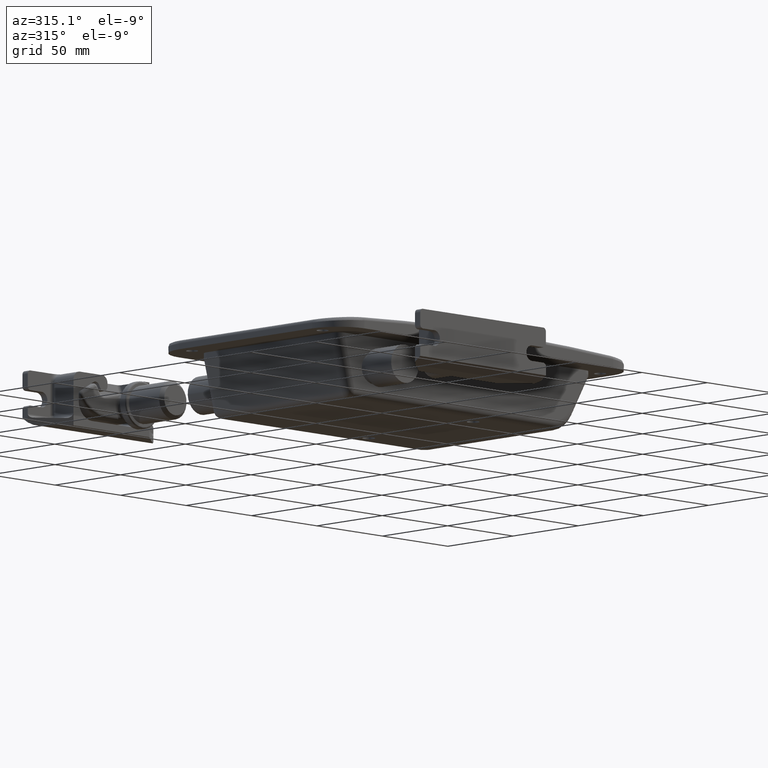
[diagram: clean part render]
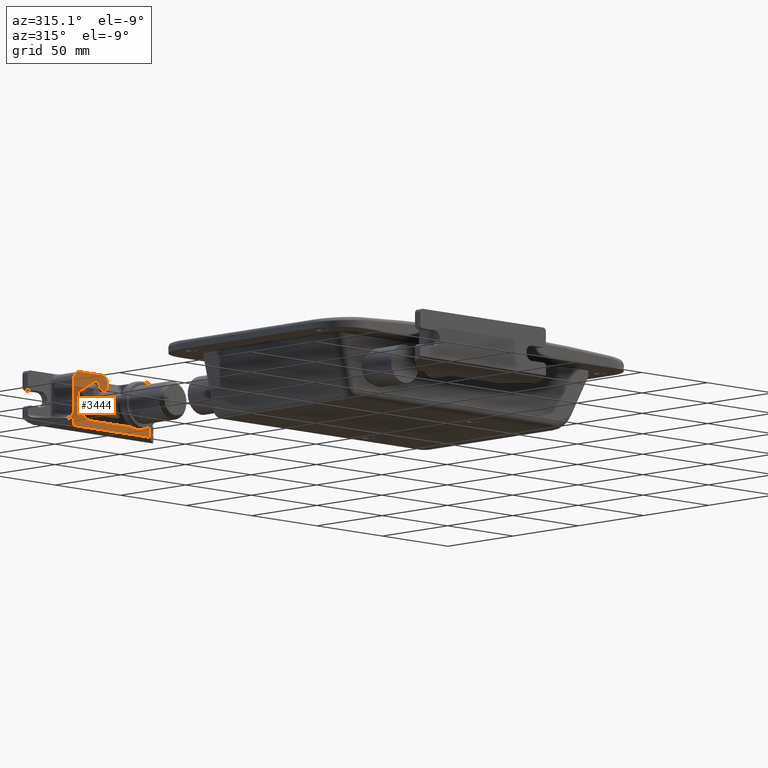
[diagram: same view with one face highlighted and labeled with its STEP entity id]
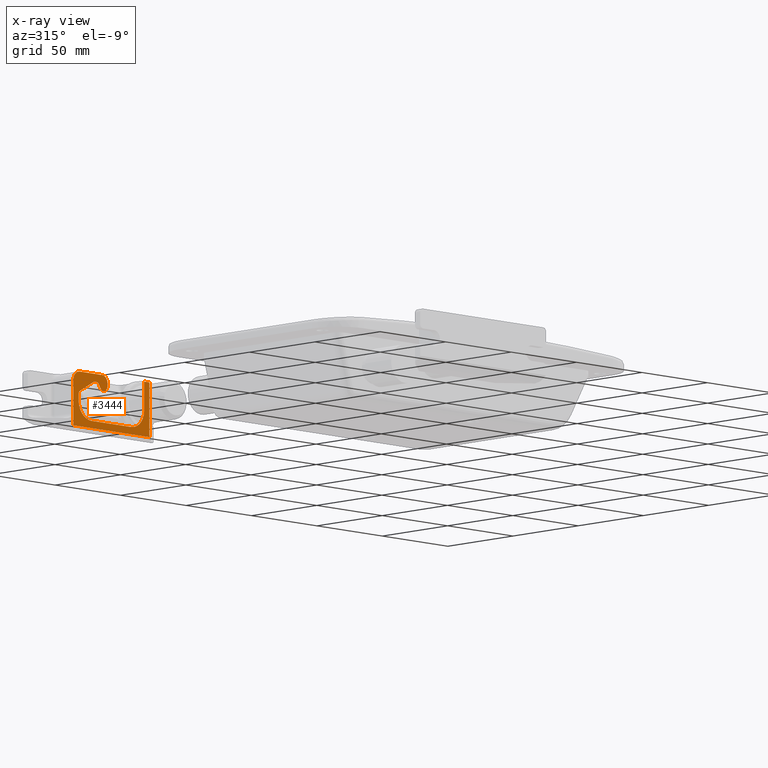
[diagram: x-ray of the same camera — body ghosted, the highlighted face saturated]
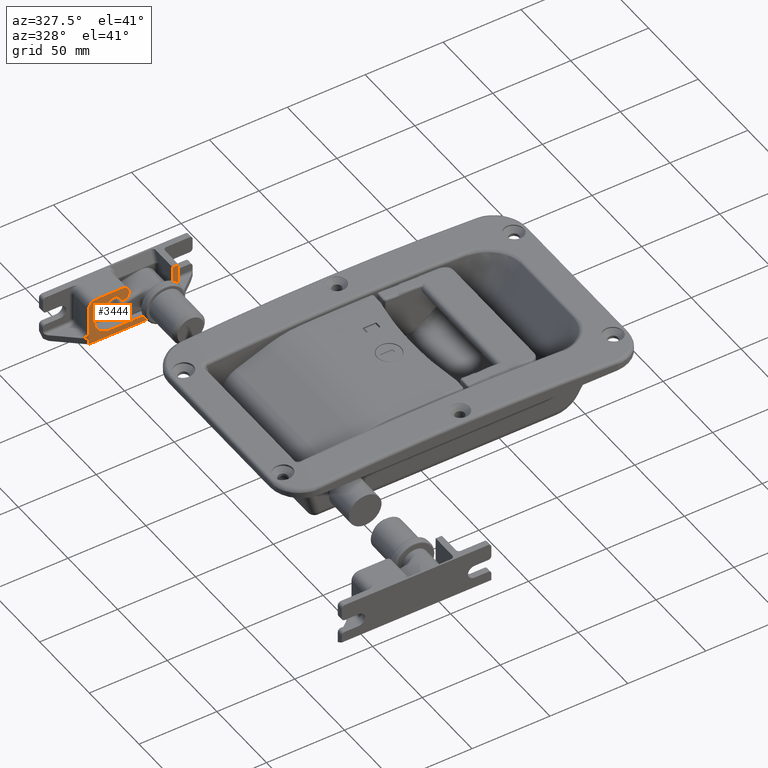
[diagram: same view with one face highlighted and labeled with its STEP entity id]
A machine part, auxiliary view. The second image highlights one B-rep face of the part: STEP entity #3444.
The next image is the same camera in x-ray: the body ghosted, the highlighted face saturated — about 0% of this face is hidden behind the body in this view.
A second angle (auxiliary view) of the same face is appended — the face is thin or edge-on in the first view.
In plain terms, the highlighted planar face has unit normal (0, -1, 0).
Its self-contained STEP definition (entity closure, byte-faithful):
#1011 = VERTEX_POINT ( 'NONE', #8761 ) ;
#1012 = VERTEX_POINT ( 'NONE', #8762 ) ;
#1015 = VERTEX_POINT ( 'NONE', #8765 ) ;
#1016 = VERTEX_POINT ( 'NONE', #8766 ) ;
#1042 = VERTEX_POINT ( 'NONE', #8792 ) ;
#1045 = VERTEX_POINT ( 'NONE', #8795 ) ;
#1058 = VERTEX_POINT ( 'NONE', #8808 ) ;
#1059 = VERTEX_POINT ( 'NONE', #8809 ) ;
#1064 = VERTEX_POINT ( 'NONE', #8814 ) ;
#1065 = VERTEX_POINT ( 'NONE', #8815 ) ;
#1089 = VERTEX_POINT ( 'NONE', #8839 ) ;
#1091 = VERTEX_POINT ( 'NONE', #8841 ) ;
#1093 = VERTEX_POINT ( 'NONE', #8843 ) ;
#1098 = VERTEX_POINT ( 'NONE', #8848 ) ;
#1100 = VERTEX_POINT ( 'NONE', #8850 ) ;
#1102 = VERTEX_POINT ( 'NONE', #8852 ) ;
#1104 = VERTEX_POINT ( 'NONE', #8854 ) ;
#1106 = VERTEX_POINT ( 'NONE', #8856 ) ;
#1108 = VERTEX_POINT ( 'NONE', #8858 ) ;
#1109 = VERTEX_POINT ( 'NONE', #8859 ) ;
#1111 = VERTEX_POINT ( 'NONE', #8861 ) ;
#1113 = VERTEX_POINT ( 'NONE', #8863 ) ;
#3444 = ADVANCED_FACE ( 'NONE', ( #16159 ), #18257, .T. ) ;
#4406 = EDGE_CURVE ( 'NONE', #1011, #1012, #19639, .T. ) ;
#4412 = EDGE_CURVE ( 'NONE', #1016, #1015, #19648, .T. ) ;
#4442 = EDGE_CURVE ( 'NONE', #1042, #1045, #19695, .T. ) ;
#4462 = EDGE_CURVE ( 'NONE', #1059, #1058, #19732, .T. ) ;
#4468 = EDGE_CURVE ( 'NONE', #1065, #1064, #19740, .T. ) ;
#4510 = EDGE_CURVE ( 'NONE', #1064, #1089, #19806, .T. ) ;
#4513 = EDGE_CURVE ( 'NONE', #1091, #1059, #19811, .T. ) ;
#4516 = EDGE_CURVE ( 'NONE', #1093, #1091, #19815, .T. ) ;
#4518 = EDGE_CURVE ( 'NONE', #1015, #1093, #19818, .T. ) ;
#4526 = EDGE_CURVE ( 'NONE', #1098, #1065, #19829, .T. ) ;
#4529 = EDGE_CURVE ( 'NONE', #1089, #1100, #19835, .T. ) ;
#4532 = EDGE_CURVE ( 'NONE', #1100, #1102, #19839, .T. ) ;
#4535 = EDGE_CURVE ( 'NONE', #1102, #1104, #19845, .T. ) ;
#4538 = EDGE_CURVE ( 'NONE', #1104, #1106, #19849, .T. ) ;
#4541 = EDGE_CURVE ( 'NONE', #1106, #1108, #19855, .T. ) ;
#4544 = EDGE_CURVE ( 'NONE', #1108, #1109, #19859, .T. ) ;
#4545 = EDGE_CURVE ( 'NONE', #1109, #1011, #19862, .T. ) ;
#4547 = EDGE_CURVE ( 'NONE', #1012, #1016, #19864, .T. ) ;
#4550 = EDGE_CURVE ( 'NONE', #1058, #1111, #19870, .T. ) ;
#4553 = EDGE_CURVE ( 'NONE', #1111, #1113, #19874, .T. ) ;
#4559 = EDGE_CURVE ( 'NONE', #1042, #1113, #19883, .T. ) ;
#4560 = EDGE_CURVE ( 'NONE', #1045, #1098, #19885, .T. ) ;
#5373 = EDGE_LOOP ( 'NONE', ( #6829, #6830, #6831, #6832, #6833, #6834, #6835, #6836, #6837, #6838, #6839, #6840, #6841, #6842, #6843, #6844, #6845, #6846, #6847, #6848, #6849, #6850 ) ) ;
#6829 = ORIENTED_EDGE ( 'NONE', *, *, #4559, .F. ) ;
#6830 = ORIENTED_EDGE ( 'NONE', *, *, #4442, .T. ) ;
#6831 = ORIENTED_EDGE ( 'NONE', *, *, #4560, .T. ) ;
#6832 = ORIENTED_EDGE ( 'NONE', *, *, #4526, .T. ) ;
#6833 = ORIENTED_EDGE ( 'NONE', *, *, #4468, .T. ) ;
#6834 = ORIENTED_EDGE ( 'NONE', *, *, #4510, .T. ) ;
#6835 = ORIENTED_EDGE ( 'NONE', *, *, #4529, .T. ) ;
#6836 = ORIENTED_EDGE ( 'NONE', *, *, #4532, .T. ) ;
#6837 = ORIENTED_EDGE ( 'NONE', *, *, #4535, .T. ) ;
#6838 = ORIENTED_EDGE ( 'NONE', *, *, #4538, .T. ) ;
#6839 = ORIENTED_EDGE ( 'NONE', *, *, #4541, .T. ) ;
#6840 = ORIENTED_EDGE ( 'NONE', *, *, #4544, .T. ) ;
#6841 = ORIENTED_EDGE ( 'NONE', *, *, #4545, .T. ) ;
#6842 = ORIENTED_EDGE ( 'NONE', *, *, #4406, .T. ) ;
#6843 = ORIENTED_EDGE ( 'NONE', *, *, #4547, .T. ) ;
#6844 = ORIENTED_EDGE ( 'NONE', *, *, #4412, .T. ) ;
#6845 = ORIENTED_EDGE ( 'NONE', *, *, #4518, .T. ) ;
#6846 = ORIENTED_EDGE ( 'NONE', *, *, #4516, .T. ) ;
#6847 = ORIENTED_EDGE ( 'NONE', *, *, #4513, .T. ) ;
#6848 = ORIENTED_EDGE ( 'NONE', *, *, #4462, .T. ) ;
#6849 = ORIENTED_EDGE ( 'NONE', *, *, #4550, .T. ) ;
#6850 = ORIENTED_EDGE ( 'NONE', *, *, #4553, .T. ) ;
#8761 = CARTESIAN_POINT ( 'NONE',  ( -12.09807621135333400, -16.00000000000000000, 10.90192378864669300 ) ) ;
#8762 = CARTESIAN_POINT ( 'NONE',  ( -9.500000000000008900, -16.00000000000000000, 9.401923788646673300 ) ) ;
#8765 = CARTESIAN_POINT ( 'NONE',  ( -5.999999999999992900, -16.00000000000000000, 6.339745962155546100 ) ) ;
#8766 = CARTESIAN_POINT ( 'NONE',  ( -8.598076211353319600, -16.00000000000000000, 7.839745962155562100 ) ) ;
#8792 = CARTESIAN_POINT ( 'NONE',  ( -28.99999999999998900, -16.00000000000000000, -15.00000000000000000 ) ) ;
#8795 = CARTESIAN_POINT ( 'NONE',  ( 29.00000000000001100, -16.00000000000000000, -15.00000000000000000 ) ) ;
#8808 = CARTESIAN_POINT ( 'NONE',  ( -23.99999999999995400, -16.00000000000000000, 14.99999999999999600 ) ) ;
#8809 = CARTESIAN_POINT ( 'NONE',  ( -7.000000000000021300, -16.00000000000000000, 15.00000000000000000 ) ) ;
#8814 = CARTESIAN_POINT ( 'NONE',  ( 25.00000000000000700, -16.00000000000000000, 15.00000000000000000 ) ) ;
#8815 = CARTESIAN_POINT ( 'NONE',  ( 29.00000000000001100, -16.00000000000000000, 15.00000000000000000 ) ) ;
#8839 = CARTESIAN_POINT ( 'NONE',  ( 25.00000000000000700, -16.00000000000000000, -0.9999999999999893400 ) ) ;
#8841 = CARTESIAN_POINT ( 'NONE',  ( -2.999999999999991600, -16.00000000000000000, 10.99999999999996800 ) ) ;
#8843 = CARTESIAN_POINT ( 'NONE',  ( -2.999999999999989800, -16.00000000000000000, 9.339745962155539900 ) ) ;
#8848 = CARTESIAN_POINT ( 'NONE',  ( 29.00000000000000400, -16.00000000000000000, -7.999999999999984900 ) ) ;
#8850 = CARTESIAN_POINT ( 'NONE',  ( 15.00000000000000700, -16.00000000000000000, -10.99999999999998800 ) ) ;
#8852 = CARTESIAN_POINT ( 'NONE',  ( -14.99999999999992000, -16.00000000000000000, -10.99999999999998200 ) ) ;
#8854 = CARTESIAN_POINT ( 'NONE',  ( -24.99999999999998900, -16.00000000000000000, -0.9999999999999107400 ) ) ;
#8856 = CARTESIAN_POINT ( 'NONE',  ( -24.99999999999999300, -16.00000000000000000, 2.762395692966119300 ) ) ;
#8858 = CARTESIAN_POINT ( 'NONE',  ( -23.99999999999997900, -16.00000000000000000, 4.494446500535001800 ) ) ;
#8859 = CARTESIAN_POINT ( 'NONE',  ( -13.59807621135332100, -16.00000000000000000, 10.50000000000001600 ) ) ;
#8861 = CARTESIAN_POINT ( 'NONE',  ( -28.99999999999998900, -16.00000000000000000, 9.999999999999964500 ) ) ;
#8863 = CARTESIAN_POINT ( 'NONE',  ( -28.99999999999999300, -16.00000000000000000, -7.999999999999965400 ) ) ;
#13558 = AXIS2_PLACEMENT_3D ( 'NONE', #18258, #18259, #18260 ) ;
#13703 = AXIS2_PLACEMENT_3D ( 'NONE', #20605, #20606, #20607 ) ;
#13706 = AXIS2_PLACEMENT_3D ( 'NONE', #20620, #20621, #20622 ) ;
#13731 = AXIS2_PLACEMENT_3D ( 'NONE', #20875, #20876, #20877 ) ;
#13732 = AXIS2_PLACEMENT_3D ( 'NONE', #20888, #20889, #20890 ) ;
#13735 = AXIS2_PLACEMENT_3D ( 'NONE', #20915, #20916, #20917 ) ;
#13737 = AXIS2_PLACEMENT_3D ( 'NONE', #20929, #20930, #20931 ) ;
#13739 = AXIS2_PLACEMENT_3D ( 'NONE', #20943, #20944, #20945 ) ;
#13740 = AXIS2_PLACEMENT_3D ( 'NONE', #20952, #20953, #20954 ) ;
#13742 = AXIS2_PLACEMENT_3D ( 'NONE', #20964, #20965, #20966 ) ;
#16159 = FACE_OUTER_BOUND ( 'NONE', #5373, .T. ) ;
#18257 = PLANE ( 'NONE',  #13558 ) ;
#18258 = CARTESIAN_POINT ( 'NONE',  ( 32.00000000000000700, -16.00000000000000000, -7.999999999999984900 ) ) ;
#18259 = DIRECTION ( 'NONE',  ( 0.0000000000000000000, -1.000000000000000000, 0.0000000000000000000 ) ) ;
#18260 = DIRECTION ( 'NONE',  ( 0.0000000000000000000, -0.0000000000000000000, -1.000000000000000000 ) ) ;
#19639 = CIRCLE ( 'NONE', #13703, 3.000000000000000900 ) ;
#19648 = CIRCLE ( 'NONE', #13706, 3.000000000000003600 ) ;
#19695 = LINE ( 'NONE', #20692, #19696 ) ;
#19696 = VECTOR ( 'NONE', #20693, 1000.000000000000000 ) ;
#19732 = LINE ( 'NONE', #20741, #19733 ) ;
#19733 = VECTOR ( 'NONE', #20742, 1000.000000000000000 ) ;
#19740 = LINE ( 'NONE', #20765, #19741 ) ;
#19741 = VECTOR ( 'NONE', #20766, 1000.000000000000000 ) ;
#19806 = LINE ( 'NONE', #20867, #19807 ) ;
#19807 = VECTOR ( 'NONE', #20868, 1000.000000000000000 ) ;
#19811 = CIRCLE ( 'NONE', #13731, 4.000000000000000000 ) ;
#19815 = LINE ( 'NONE', #20882, #19816 ) ;
#19816 = VECTOR ( 'NONE', #20883, 1000.000000000000000 ) ;
#19818 = CIRCLE ( 'NONE', #13732, 3.000000000000003600 ) ;
#19829 = LINE ( 'NONE', #20908, #19830 ) ;
#19830 = VECTOR ( 'NONE', #20909, 1000.000000000000000 ) ;
#19835 = CIRCLE ( 'NONE', #13735, 9.999999999999998200 ) ;
#19839 = LINE ( 'NONE', #20922, #19840 ) ;
#19840 = VECTOR ( 'NONE', #20923, 1000.000000000000000 ) ;
#19845 = CIRCLE ( 'NONE', #13737, 10.00000000000000000 ) ;
#19849 = LINE ( 'NONE', #20936, #19850 ) ;
#19850 = VECTOR ( 'NONE', #20937, 1000.000000000000000 ) ;
#19855 = CIRCLE ( 'NONE', #13739, 2.000000000000003100 ) ;
#19859 = LINE ( 'NONE', #20950, #19860 ) ;
#19860 = VECTOR ( 'NONE', #20951, 1000.000000000000100 ) ;
#19862 = CIRCLE ( 'NONE', #13740, 3.000000000000000900 ) ;
#19864 = LINE ( 'NONE', #20957, #19865 ) ;
#19865 = VECTOR ( 'NONE', #20958, 1000.000000000000100 ) ;
#19870 = CIRCLE ( 'NONE', #13742, 4.999999999999998200 ) ;
#19874 = LINE ( 'NONE', #20971, #19875 ) ;
#19875 = VECTOR ( 'NONE', #20972, 1000.000000000000000 ) ;
#19883 = LINE ( 'NONE', #20986, #19884 ) ;
#19884 = VECTOR ( 'NONE', #20987, 1000.000000000000000 ) ;
#19885 = LINE ( 'NONE', #20988, #19886 ) ;
#19886 = VECTOR ( 'NONE', #20989, 1000.000000000000000 ) ;
#20605 = CARTESIAN_POINT ( 'NONE',  ( -12.09807621135333400, -16.00000000000000000, 7.901923788646691100 ) ) ;
#20606 = DIRECTION ( 'NONE',  ( -0.0000000000000000000, 1.000000000000000000, -0.0000000000000000000 ) ) ;
#20607 = DIRECTION ( 'NONE',  ( 0.0000000000000000000, 0.0000000000000000000, -1.000000000000000000 ) ) ;
#20620 = CARTESIAN_POINT ( 'NONE',  ( -5.999999999999992900, -16.00000000000000000, 9.339745962155550500 ) ) ;
#20621 = DIRECTION ( 'NONE',  ( 0.0000000000000000000, -1.000000000000000000, 0.0000000000000000000 ) ) ;
#20622 = DIRECTION ( 'NONE',  ( 0.0000000000000000000, 0.0000000000000000000, -1.000000000000000000 ) ) ;
#20692 = CARTESIAN_POINT ( 'NONE',  ( -47.99999999999999300, -16.00000000000000000, -15.00000000000000000 ) ) ;
#20693 = DIRECTION ( 'NONE',  ( 1.000000000000000000, 0.0000000000000000000, 0.0000000000000000000 ) ) ;
#20741 = CARTESIAN_POINT ( 'NONE',  ( -7.000000000000021300, -16.00000000000000000, 15.00000000000000000 ) ) ;
#20742 = DIRECTION ( 'NONE',  ( -1.000000000000000000, 0.0000000000000000000, -1.020425574104008100E-016 ) ) ;
#20765 = CARTESIAN_POINT ( 'NONE',  ( 29.00000000000001100, -16.00000000000000000, 15.00000000000000000 ) ) ;
#20766 = DIRECTION ( 'NONE',  ( -1.000000000000000000, 0.0000000000000000000, 0.0000000000000000000 ) ) ;
#20867 = CARTESIAN_POINT ( 'NONE',  ( 25.00000000000000700, -16.00000000000000000, 15.00000000000000000 ) ) ;
#20868 = DIRECTION ( 'NONE',  ( 0.0000000000000000000, 0.0000000000000000000, -1.000000000000000000 ) ) ;
#20875 = CARTESIAN_POINT ( 'NONE',  ( -6.999999999999991100, -16.00000000000000000, 11.00000000000000000 ) ) ;
#20876 = DIRECTION ( 'NONE',  ( 0.0000000000000000000, -1.000000000000000000, 0.0000000000000000000 ) ) ;
#20877 = DIRECTION ( 'NONE',  ( 0.0000000000000000000, 0.0000000000000000000, -1.000000000000000000 ) ) ;
#20882 = CARTESIAN_POINT ( 'NONE',  ( -2.999999999999989800, -16.00000000000000000, 9.339745962155539900 ) ) ;
#20883 = DIRECTION ( 'NONE',  ( -1.044854243046482600E-015, 0.0000000000000000000, 1.000000000000000000 ) ) ;
#20888 = CARTESIAN_POINT ( 'NONE',  ( -5.999999999999992900, -16.00000000000000000, 9.339745962155550500 ) ) ;
#20889 = DIRECTION ( 'NONE',  ( 0.0000000000000000000, -1.000000000000000000, 0.0000000000000000000 ) ) ;
#20890 = DIRECTION ( 'NONE',  ( 0.0000000000000000000, 0.0000000000000000000, -1.000000000000000000 ) ) ;
#20908 = CARTESIAN_POINT ( 'NONE',  ( 29.00000000000000400, -16.00000000000000000, -7.999999999999984900 ) ) ;
#20909 = DIRECTION ( 'NONE',  ( 3.016910393003144800E-016, 0.0000000000000000000, 1.000000000000000000 ) ) ;
#20915 = CARTESIAN_POINT ( 'NONE',  ( 15.00000000000001100, -16.00000000000000000, -0.9999999999999887900 ) ) ;
#20916 = DIRECTION ( 'NONE',  ( -0.0000000000000000000, 1.000000000000000000, -0.0000000000000000000 ) ) ;
#20917 = DIRECTION ( 'NONE',  ( 0.0000000000000000000, 0.0000000000000000000, -1.000000000000000000 ) ) ;
#20922 = CARTESIAN_POINT ( 'NONE',  ( 15.00000000000000700, -16.00000000000000000, -10.99999999999998800 ) ) ;
#20923 = DIRECTION ( 'NONE',  ( -1.000000000000000000, -0.0000000000000000000, 1.734723475976811300E-016 ) ) ;
#20929 = CARTESIAN_POINT ( 'NONE',  ( -14.99999999999999100, -16.00000000000000000, -0.9999999999999817900 ) ) ;
#20930 = DIRECTION ( 'NONE',  ( -0.0000000000000000000, 1.000000000000000000, -0.0000000000000000000 ) ) ;
#20931 = DIRECTION ( 'NONE',  ( 0.0000000000000000000, 0.0000000000000000000, -1.000000000000000000 ) ) ;
#20936 = CARTESIAN_POINT ( 'NONE',  ( -24.99999999999998900, -16.00000000000000000, -0.9999999999999107400 ) ) ;
#20937 = DIRECTION ( 'NONE',  ( -9.221377109377154600E-016, 0.0000000000000000000, 1.000000000000000000 ) ) ;
#20943 = CARTESIAN_POINT ( 'NONE',  ( -22.99999999999999300, -16.00000000000000000, 2.762395692966111800 ) ) ;
#20944 = DIRECTION ( 'NONE',  ( -0.0000000000000000000, 1.000000000000000000, -0.0000000000000000000 ) ) ;
#20945 = DIRECTION ( 'NONE',  ( 0.0000000000000000000, 0.0000000000000000000, -1.000000000000000000 ) ) ;
#20950 = CARTESIAN_POINT ( 'NONE',  ( -23.99999999999997900, -16.00000000000000000, 4.494446500535001800 ) ) ;
#20951 = DIRECTION ( 'NONE',  ( 0.8660254037844423700, 0.0000000000000000000, 0.4999999999999934500 ) ) ;
#20952 = CARTESIAN_POINT ( 'NONE',  ( -12.09807621135333400, -16.00000000000000000, 7.901923788646691100 ) ) ;
#20953 = DIRECTION ( 'NONE',  ( -0.0000000000000000000, 1.000000000000000000, -0.0000000000000000000 ) ) ;
#20954 = DIRECTION ( 'NONE',  ( 0.0000000000000000000, 0.0000000000000000000, -1.000000000000000000 ) ) ;
#20957 = CARTESIAN_POINT ( 'NONE',  ( -9.500000000000008900, -16.00000000000000000, 9.401923788646673300 ) ) ;
#20958 = DIRECTION ( 'NONE',  ( 0.4999999999999916200, 0.0000000000000000000, -0.8660254037844433700 ) ) ;
#20964 = CARTESIAN_POINT ( 'NONE',  ( -23.99999999999999300, -16.00000000000000000, 9.999999999999998200 ) ) ;
#20965 = DIRECTION ( 'NONE',  ( 0.0000000000000000000, -1.000000000000000000, 0.0000000000000000000 ) ) ;
#20966 = DIRECTION ( 'NONE',  ( 0.0000000000000000000, 0.0000000000000000000, -1.000000000000000000 ) ) ;
#20971 = CARTESIAN_POINT ( 'NONE',  ( -28.99999999999998900, -16.00000000000000000, 9.999999999999964500 ) ) ;
#20972 = DIRECTION ( 'NONE',  ( -1.927470528863126700E-016, -0.0000000000000000000, -1.000000000000000000 ) ) ;
#20986 = CARTESIAN_POINT ( 'NONE',  ( -28.99999999999999300, -16.00000000000000000, -15.00000000000000000 ) ) ;
#20987 = DIRECTION ( 'NONE',  ( -0.0000000000000000000, -0.0000000000000000000, 1.000000000000000000 ) ) ;
#20988 = CARTESIAN_POINT ( 'NONE',  ( 29.00000000000001100, -16.00000000000000000, -15.00000000000000000 ) ) ;
#20989 = DIRECTION ( 'NONE',  ( -0.0000000000000000000, -0.0000000000000000000, 1.000000000000000000 ) ) ;